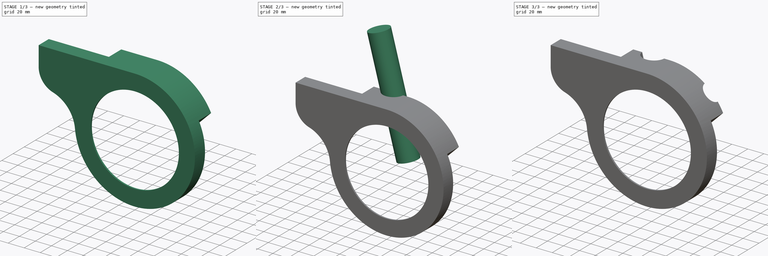
[diagram: build sequence overview — one tinted view per stage of 3, left to right]
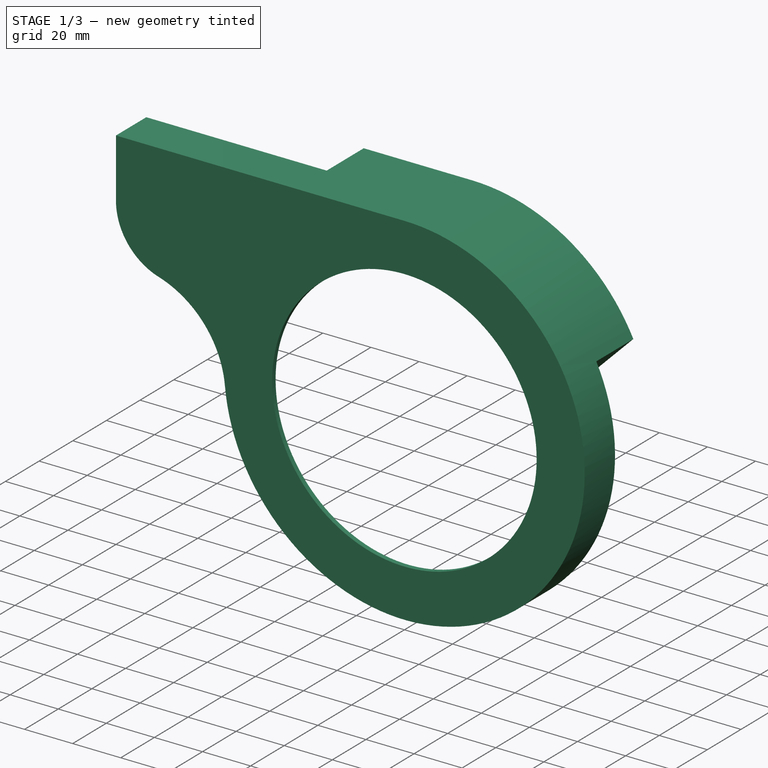
[diagram: stage 1 of 3 — iso view after this stage's code; geometry added in this stage tinted green]
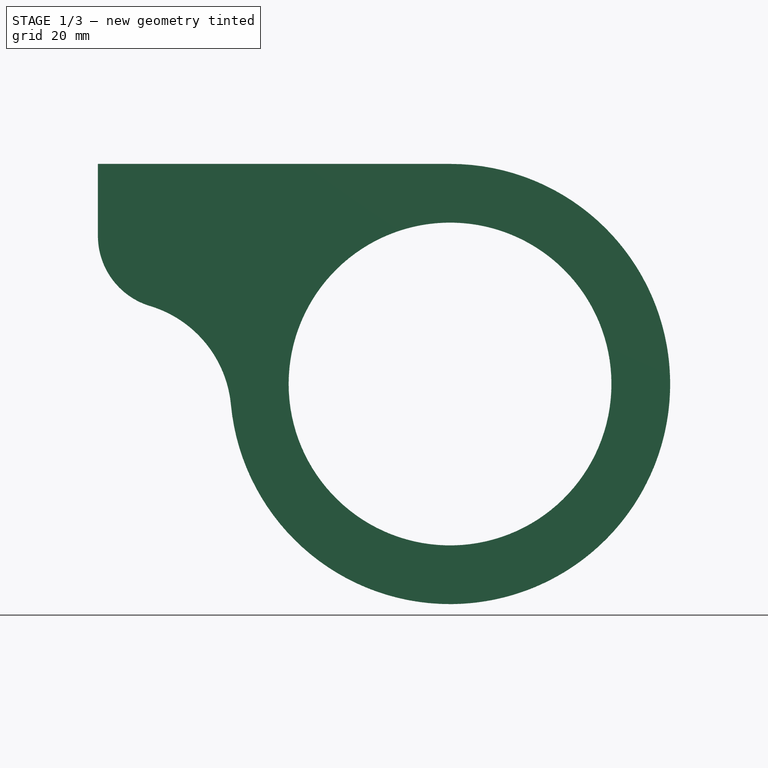
[diagram: stage 1 of 3 — front view after this stage's code; geometry added in this stage tinted green]
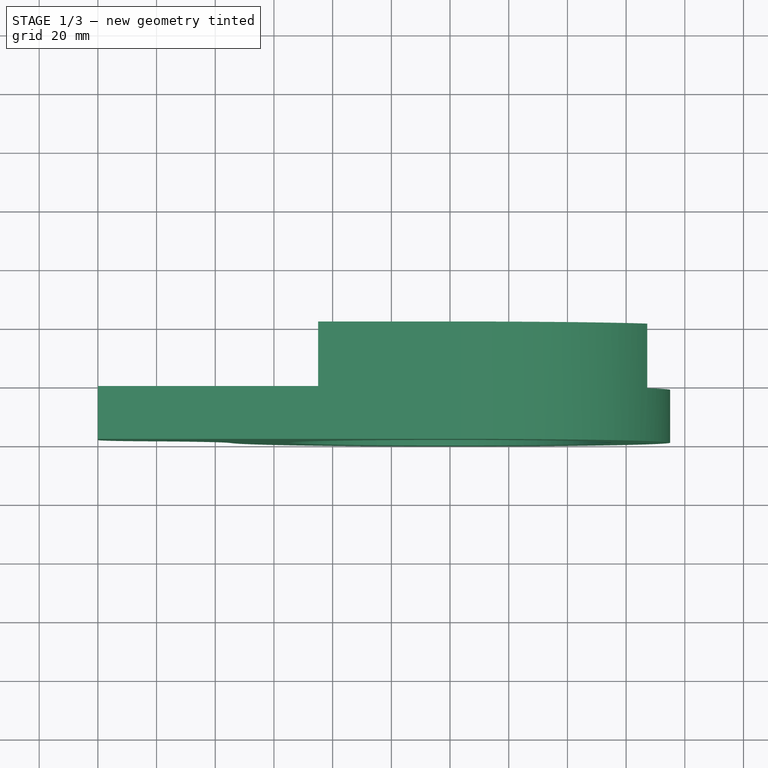
[diagram: stage 1 of 3 — top view after this stage's code; geometry added in this stage tinted green]
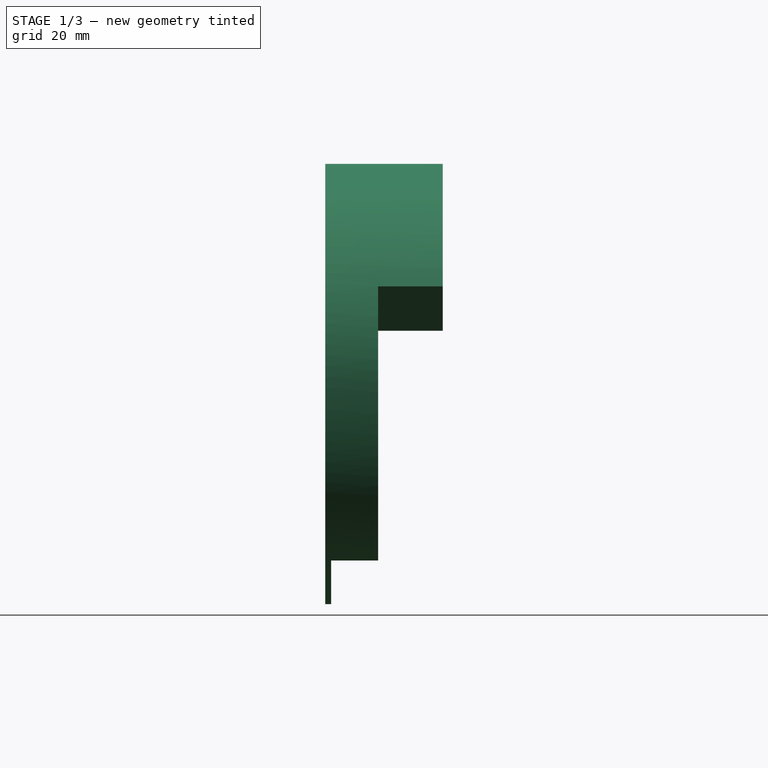
[diagram: stage 1 of 3 — right view after this stage's code; geometry added in this stage tinted green]
FCSTD DOCUMENT  (FreeCAD 0.19R)
Label: BottomWhiteBike3
License: All rights reserved
LicenseURL: http://en.wikipedia.org/wiki/All_rights_reserved
objects: Sketcher::SketchObject×4, PartDesign::Pocket×3, Part::Cylinder×2, PartDesign::Pad×1, Part::MultiFuse×1, PartDesign::Body×1, Part::Cut×1
note: 17 computed .brp shape members not serialized (recipe doc carries the construction recipe); baked Part::Feature solids carry a one-line shape summary decoded from their .brp

FEATURE [Sketcher::SketchObject] Sketch
  FullyConstrained = false
  MapMode = 5
  Placement = pos=(0,0,0) rot=(1,0,0;1.5708rad)
  Support = -> [XZ_Plane]
  sketch-geometry (11):
    g0: LineSegment StartX=0 StartY=0 StartZ=0 EndX=112.706 EndY=65.0706 EndZ=0
    g1: LineSegment StartX=0 StartY=0 StartZ=0 EndX=7.3e-15 EndY=119.149 EndZ=0
    g2: LineSegment StartX=2.14e-14 StartY=70 StartZ=0 EndX=-199.884 EndY=70 EndZ=0
    g3: Circle CenterX=0 CenterY=0 CenterZ=0 NormalX=0 NormalY=0 NormalZ=1 AngleXU=0 Radius=45
    g4: ArcOfCircle CenterX=0 CenterY=0 CenterZ=0 NormalX=0 NormalY=0 NormalZ=1 AngleXU=0 Radius=70 StartAngle=3.5224 EndAngle=7.85398
    g5: LineSegment StartX=-120 StartY=75 StartZ=0 EndX=2.84e-14 EndY=75 EndZ=0
    g6: ArcOfCircle CenterX=0 CenterY=0 CenterZ=0 NormalX=0 NormalY=0 NormalZ=1 AngleXU=0 Radius=75 StartAngle=3.23571 EndAngle=7.85398
    g7: LineSegment StartX=-120 StartY=75 StartZ=0 EndX=-120 EndY=50.5061 EndZ=0
    g8: ArcOfCircle CenterX=-95 CenterY=50.5061 CenterZ=0 NormalX=0 NormalY=0 NormalZ=1 AngleXU=0 Radius=25 StartAngle=3.14159 EndAngle=4.4201
    g9: Circle CenterX=0 CenterY=0 CenterZ=0 NormalX=0 NormalY=0 NormalZ=1 AngleXU=0 Radius=55
    g10: ArcOfCircle CenterX=-113.419 CenterY=-10.7061 CenterZ=0 NormalX=0 NormalY=0 NormalZ=1 AngleXU=0 Radius=38.9235 StartAngle=0.0941155 EndAngle=1.27851
  constraints (25):
    c: Coincident(g0,g-1)
    c: Coincident(g1,g-1)
    c: Angle(g1) = 1.5708
    c: Angle(g0,g1) = 1.0472
    c: PointOnObject(g2,g1)
    c: Angle(g2) = 3.14159
    c: DistanceY(g2) = 70
    c: Coincident(g3,g-1)
    c: Coincident(g4,g-1)
    c: Diameter(g3) = 90
    c: Coincident(g4,g2)
    c: PointOnObject(g5,g1)
    c: Horizontal(g5)
    c: Coincident(g6,g-1)
    c: Coincident(g6,g5)
    c: Coincident(g5,g7)
    c: Vertical(g7)
    c: Tangent(g8,g7) = -1.5708
    c: Diameter(g6) = 150
    c: Distance(g5) = 120
    c: Diameter(g8) = 50
    c: Coincident(g9,g6)
    c: Diameter(g9) = 110
    c: Tangent(g10,g6) = 1.5708
    c: Tangent(g10,g8) = 1.5708
FEATURE [PartDesign::Pad] Pad
  Direction = (1,1,1)
  Length = 40
  Length2 = 100
  Placement = pos=(0,0,0) rot=(1,0,0;1.5708rad)
  Profile = -> Sketch
  Type = 0
FEATURE [Sketcher::SketchObject] Sketch001
  FullyConstrained = false
  MapMode = 5
  Placement = pos=(0,0,0) rot=(-1,0,0;1.5708rad)
  Support = -> [Pad]
  sketch-geometry (10):
    g0: GeomPoint X=0 Y=0 Z=0
    g1: LineSegment StartX=0 StartY=0 StartZ=0 EndX=121.2 EndY=-121.2 EndZ=0
    g2: LineSegment StartX=52.0812 StartY=-18.1401 StartZ=0 EndX=85.5524 EndY=-51.6113 EndZ=0
    g3: ArcOfCircle CenterX=0 CenterY=0 CenterZ=0 NormalX=0 NormalY=0 NormalZ=1 AngleXU=0 Radius=99.9147 StartAngle=5.74036 EndAngle=9.42478
    g4: LineSegment StartX=-211.759 StartY=-108.832 StartZ=0 EndX=-99.9147 EndY=4.26e-14 EndZ=0
    g5: LineSegment StartX=52.0812 StartY=-18.1401 StartZ=0 EndX=18.1401 EndY=-52.0812 EndZ=0
    g6: LineSegment StartX=18.1401 StartY=-52.0812 StartZ=0 EndX=-37.9079 EndY=-48.7455 EndZ=0
    g7: LineSegment StartX=-37.9079 StartY=-48.7455 StartZ=0 EndX=-54.0081 EndY=-108.832 EndZ=0
    g8: LineSegment StartX=-54.0081 StartY=-108.832 StartZ=0 EndX=-211.759 EndY=-108.832 EndZ=0
    g9: LineSegment StartX=0 StartY=0 StartZ=0 EndX=-54.4685 EndY=-203.279 EndZ=0
  constraints (19):
    c: Coincident(g1,g-1)
    c: Angle(g1,g-2) = 2.35619
    c: Coincident(g3,g-1)
    c: Coincident(g3,g2)
    c: PointOnObject(g3,g-1)
    c: Coincident(g4,g3)
    c: Coincident(g2,g5)
    c: Coincident(g6,g7)
    c: Coincident(g7,g8)
    c: Horizontal(g8)
    c: Coincident(g4,g8)
    c: Symmetric(g2,g5,g1)
    c: Distance(g2,g1) = 24
    c: Coincident(g5,g6)
    c: Parallel(g2,g1)
    c: Coincident(g9,g3)
    c: Angle(g9,g1) = 1.0472
    c: Parallel(g9,g7)
    c: Distance(g7,g9) = 24
FEATURE [PartDesign::Pocket] Pocket  label="FirstPocket-trim"
  BaseFeature = -> Pad
  Length = 22
  Length2 = 100
  Placement = pos=(0,0,0) rot=(1,0,0;1.5708rad)
  Profile = -> Sketch001
  Type = 0
FEATURE [Sketcher::SketchObject] Sketch003
  FullyConstrained = false
  MapMode = 5
  Placement = pos=(0,-22,2.44e-14) rot=(-1,0,0;1.5708rad)
  Support = -> [Pocket]
  sketch-geometry (5):
    g0: ArcOfCircle CenterX=0 CenterY=0 CenterZ=0 NormalX=0 NormalY=0 NormalZ=1 AngleXU=0 Radius=70 StartAngle=4.71239 EndAngle=7.21016
    g1: LineSegment StartX=42.0181 StartY=55.9864 StartZ=0 EndX=62.2266 EndY=86.1683 EndZ=0
    g2: LineSegment StartX=62.2266 StartY=86.1683 StartZ=0 EndX=-170.809 EndY=86.1683 EndZ=0
    g3: LineSegment StartX=-170.809 StartY=86.1683 StartZ=0 EndX=-170.809 EndY=-70 EndZ=0
    g4: LineSegment StartX=-170.809 StartY=-70 StartZ=0 EndX=0 EndY=-70 EndZ=0
  constraints (11):
    c: Coincident(g0,g-1)
    c: PointOnObject(g0,g-2)
    c: Diameter(g0) = 140
    c: Coincident(g1,g0)
    c: Coincident(g1,g2)
    c: Horizontal(g2)
    c: Coincident(g2,g3)
    c: Vertical(g3)
    c: Coincident(g3,g4)
    c: Coincident(g4,g0)
    c: Horizontal(g4)
FEATURE [PartDesign::Pocket] Pocket001  label="2ndPocket-thk"
  BaseFeature = -> Pocket
  Length = 16
  Length2 = 0
  Placement = pos=(0,0,0) rot=(1,0,0;1.5708rad)
  Profile = -> Sketch003
  Type = 4
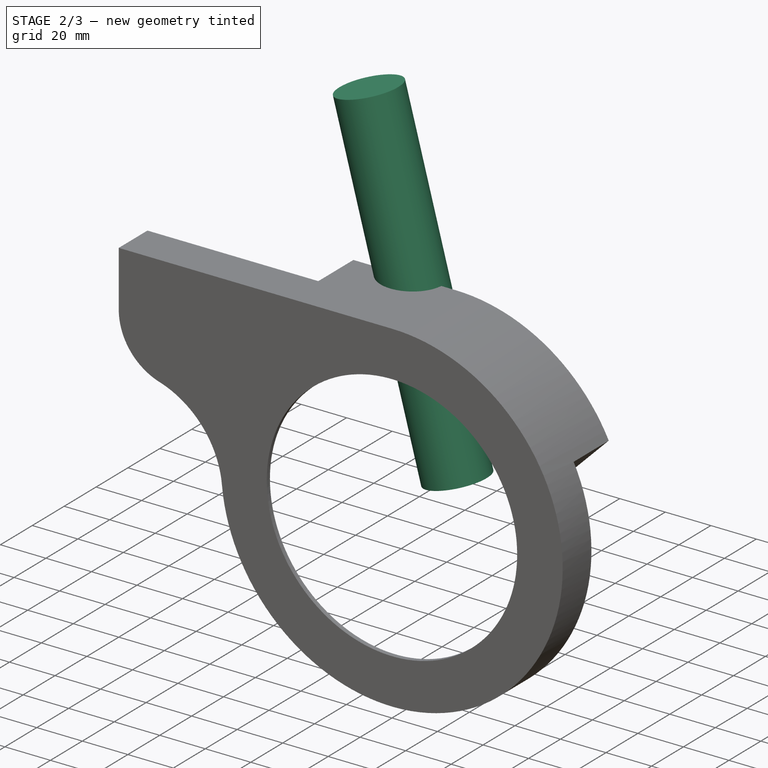
[diagram: stage 2 of 3 — iso view after this stage's code; geometry added in this stage tinted green]
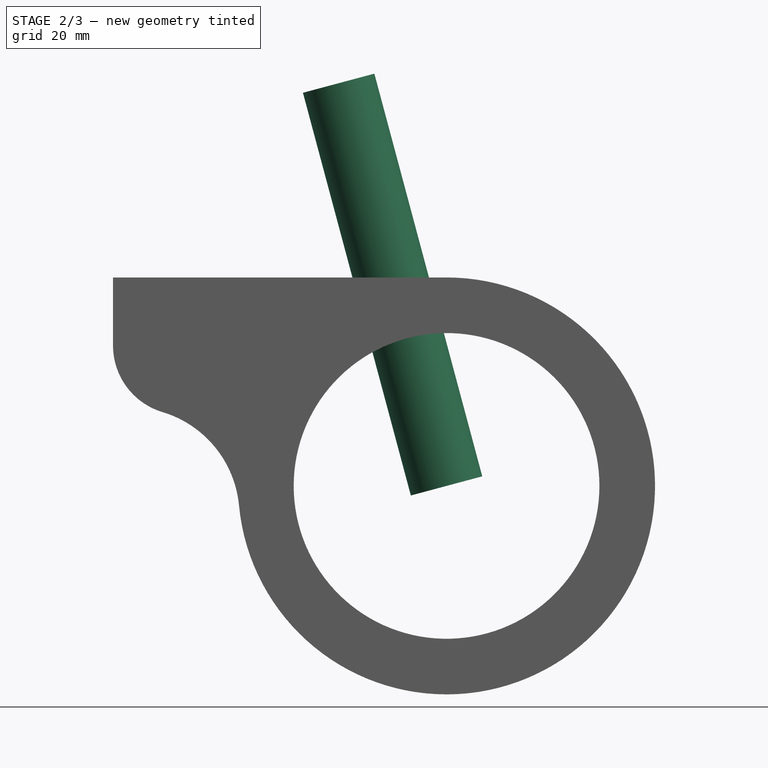
[diagram: stage 2 of 3 — front view after this stage's code; geometry added in this stage tinted green]
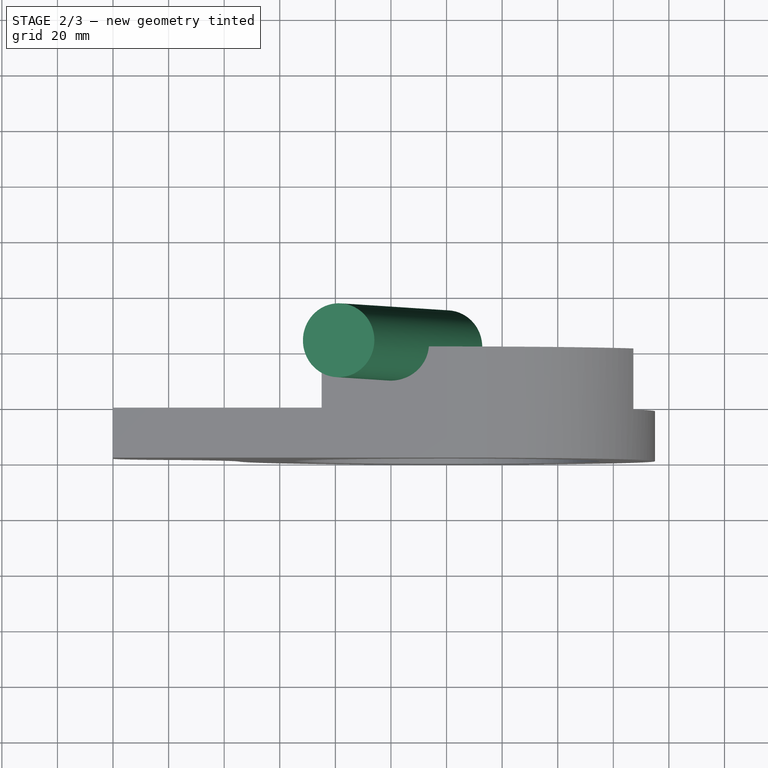
[diagram: stage 2 of 3 — top view after this stage's code; geometry added in this stage tinted green]
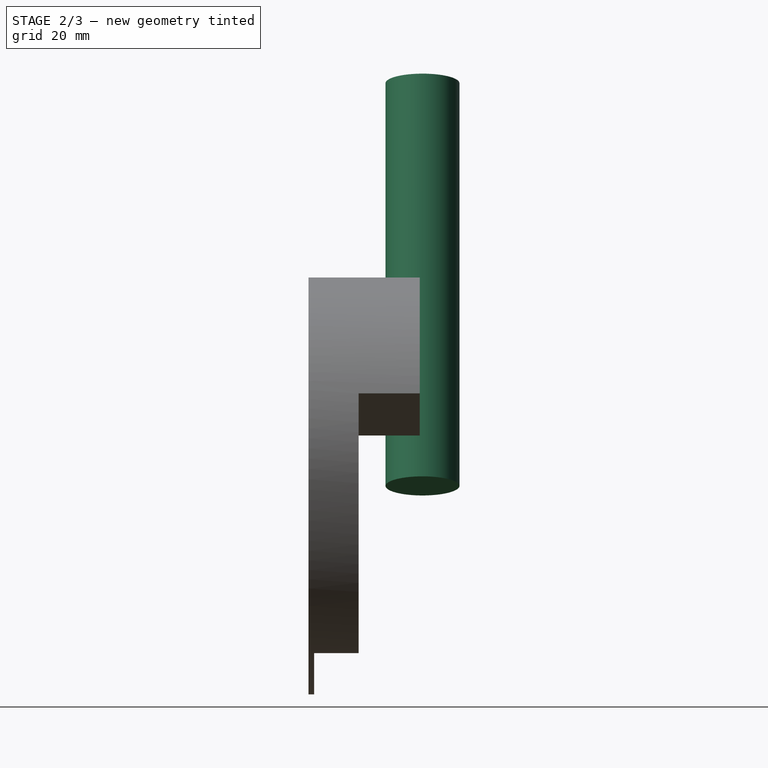
[diagram: stage 2 of 3 — right view after this stage's code; geometry added in this stage tinted green]
FEATURE [Part::Cylinder] Cylinder001  label="ST"
  Angle = 360
  AttacherType = Attacher::AttachEngine3D
  Height = 150
  Placement = pos=(0,1,0) rot=(0,1,0;-0.261799rad)
  Radius = 13.3
FEATURE [Sketcher::SketchObject] Sketch004
  FullyConstrained = false
  MapMode = 5
  Placement = pos=(1e-16,-38,4.23e-14) rot=(0,0.707107,0.707107;3.14159rad)
  sketch-geometry (2):
    g0: Circle CenterX=0 CenterY=0 CenterZ=0 NormalX=0 NormalY=0 NormalZ=1 AngleXU=0 Radius=68.7241
    g1: Circle CenterX=0 CenterY=0 CenterZ=0 NormalX=0 NormalY=0 NormalZ=1 AngleXU=0 Radius=60.6833
  constraints (2):
    c: Coincident(g0,g-1)
    c: Coincident(g1,g0)
FEATURE [PartDesign::Pocket] Pocket002  label="ChainGroove"
  BaseFeature = -> Pocket001
  Length = 0.5
  Length2 = 100
  Placement = pos=(0,0,0) rot=(1,0,0;1.5708rad)
  Profile = -> Sketch004
  Type = 0
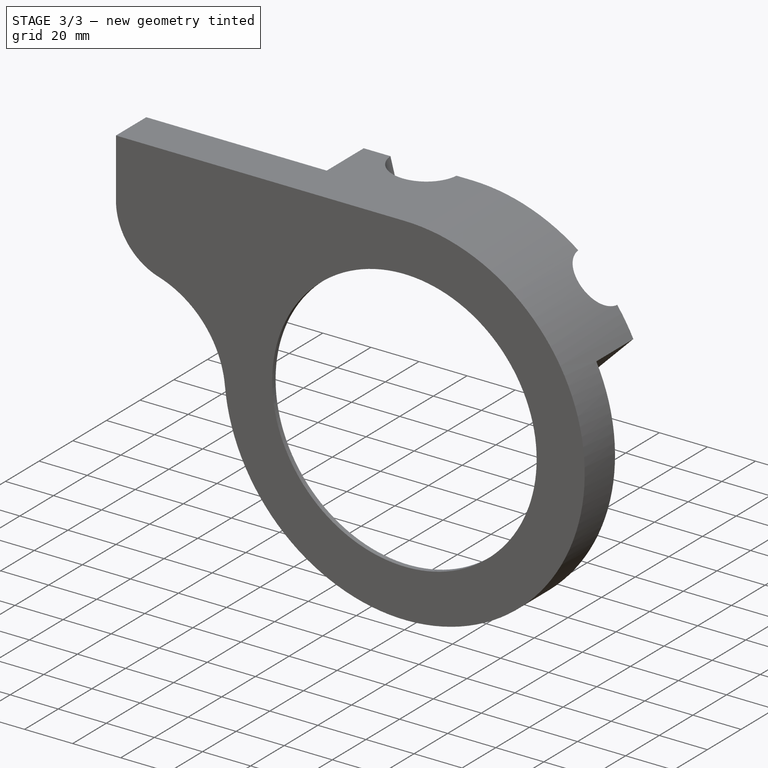
[diagram: stage 3 of 3 — iso view after this stage's code; geometry added in this stage tinted green]
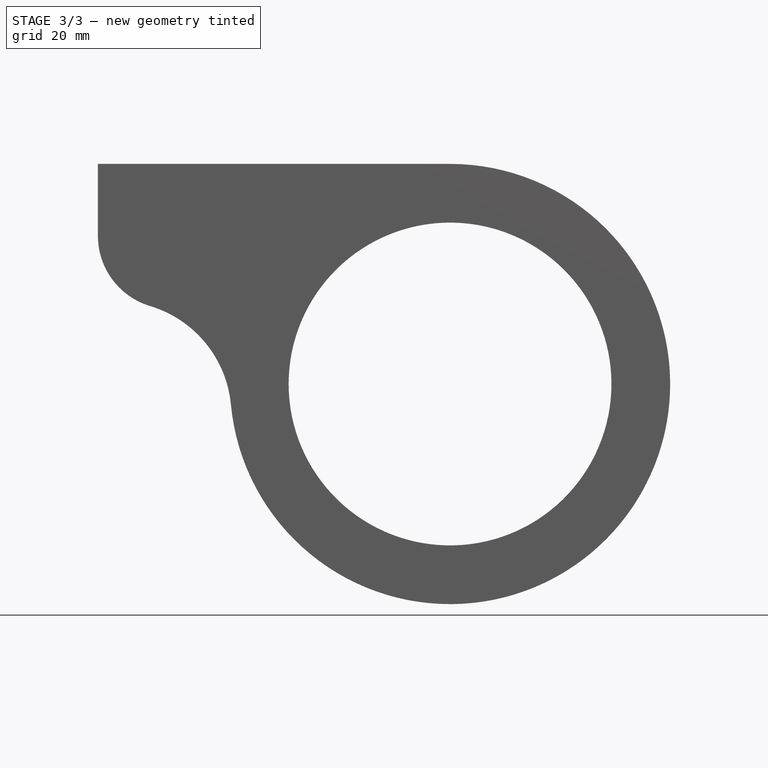
[diagram: stage 3 of 3 — front view after this stage's code; geometry added in this stage tinted green]
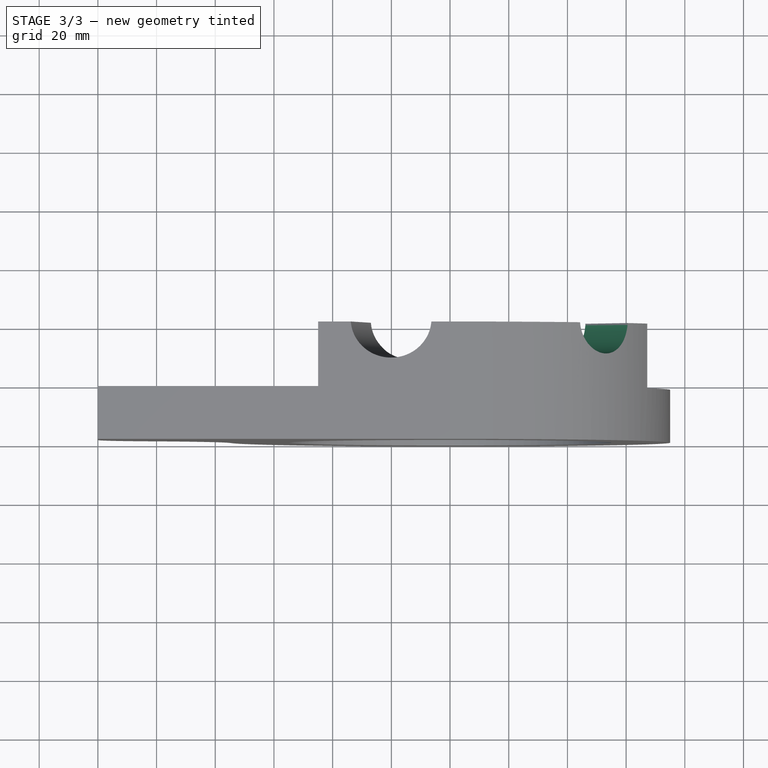
[diagram: stage 3 of 3 — top view after this stage's code; geometry added in this stage tinted green]
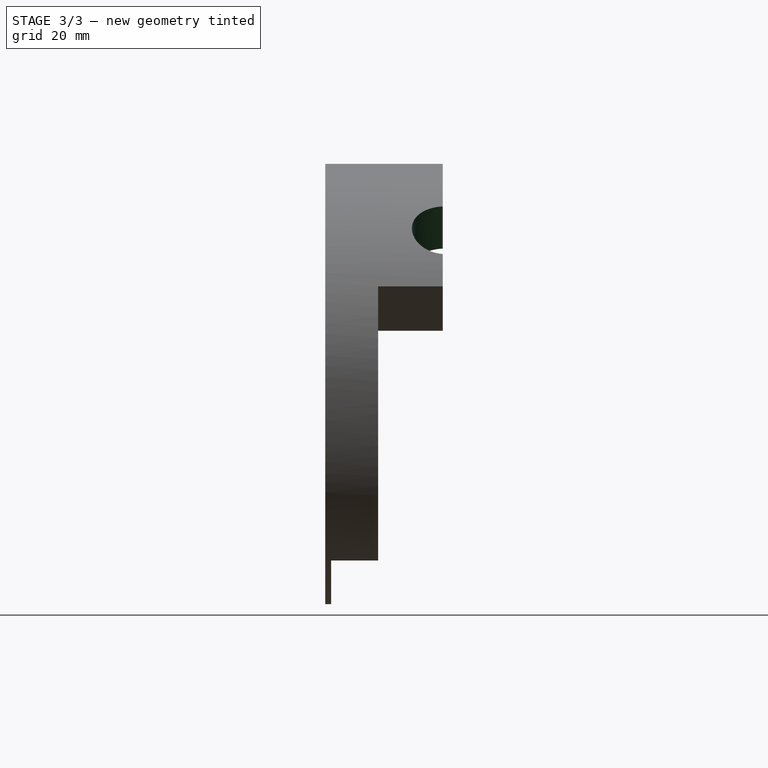
[diagram: stage 3 of 3 — right view after this stage's code; geometry added in this stage tinted green]
FEATURE [Part::Cylinder] Cylinder  label="DT"
  Angle = 360
  AttacherType = Attacher::AttachEngine3D
  Height = 150
  Placement = pos=(0,1,0) rot=(0,1,0;0.785398rad)
  Radius = 11.5
FEATURE [Part::MultiFuse] Fusion
  Shapes = -> [Cylinder,Cylinder001]
FEATURE [PartDesign::Body] Body
  Group = -> [Sketch,Pad,Sketch001,Pocket,Sketch003,Pocket001,Sketch004,Pocket002]
  Origin = -> Origin
  Tip = -> Pocket002
FEATURE [Part::Cut] Cut
  Base = -> Pocket002
  Tool = -> Fusion
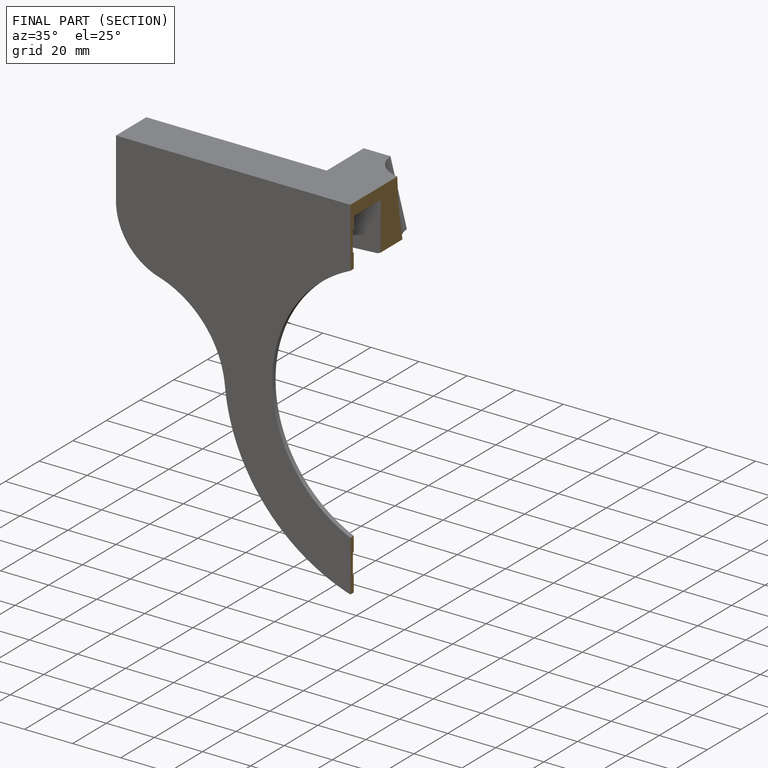
[diagram: finished part — half-section view (interior)]
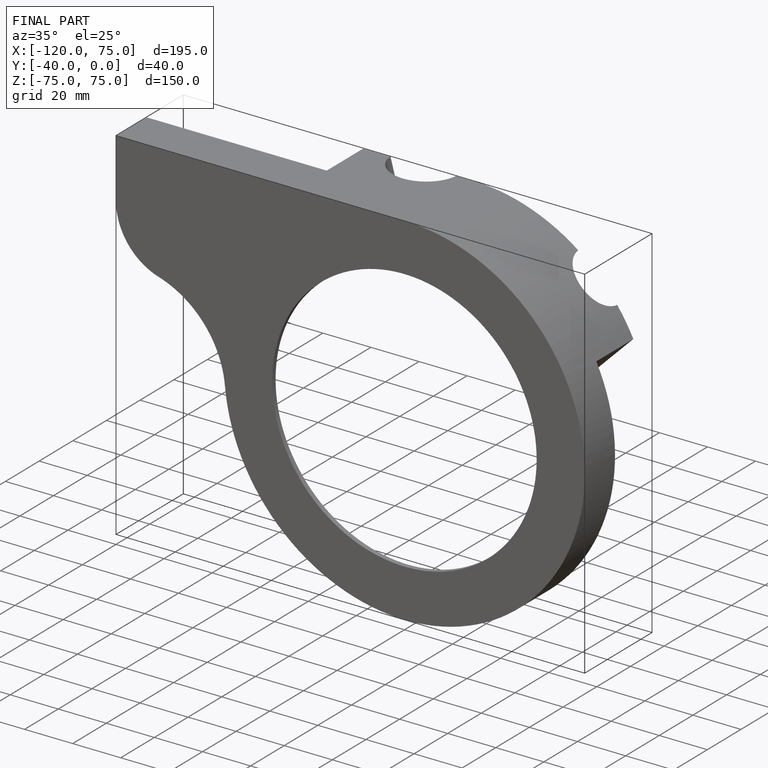
[diagram: finished part — iso view with bounding-box wireframe]
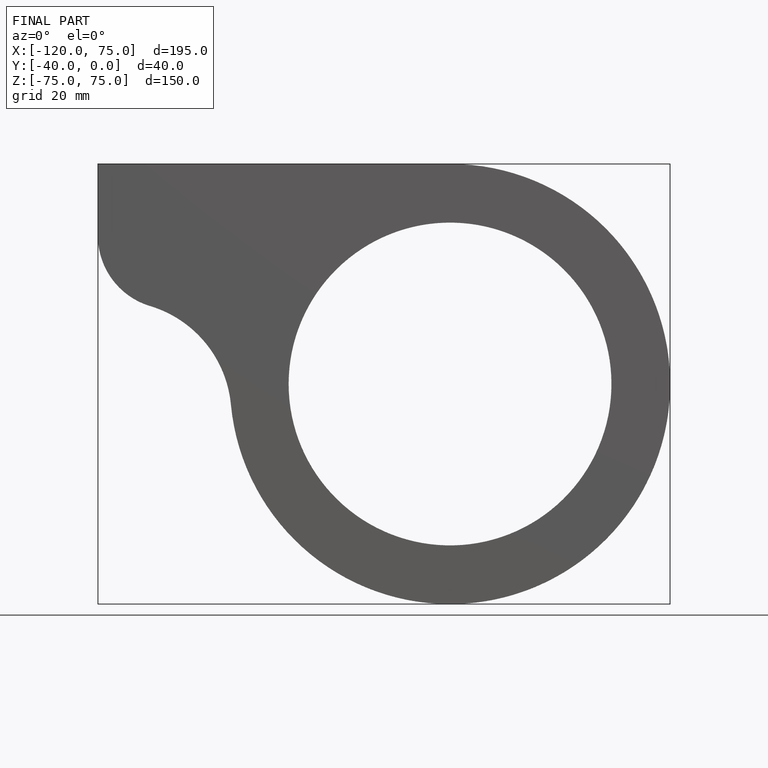
[diagram: finished part — front view with bounding-box wireframe]
